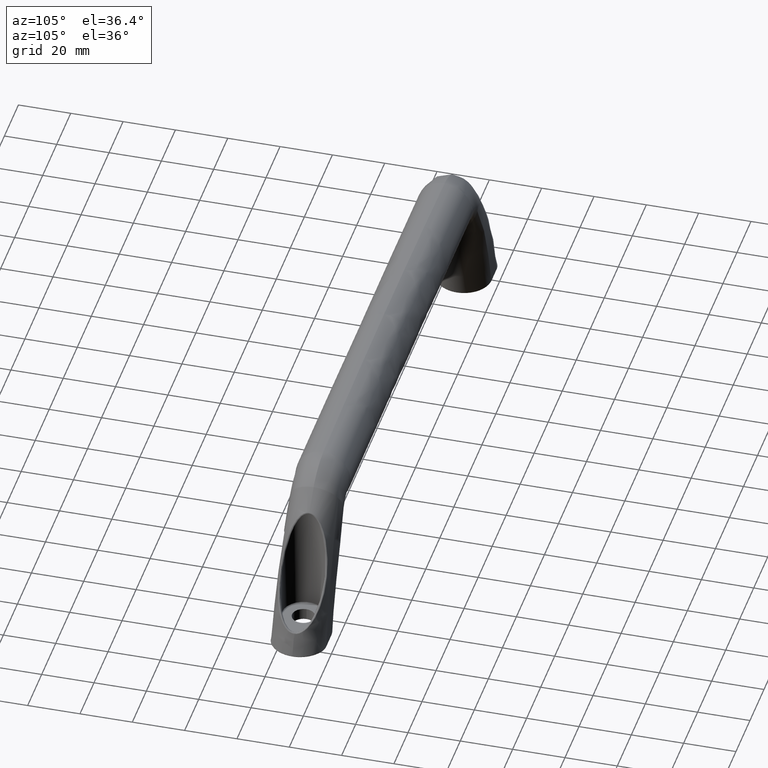
[diagram: clean part render]
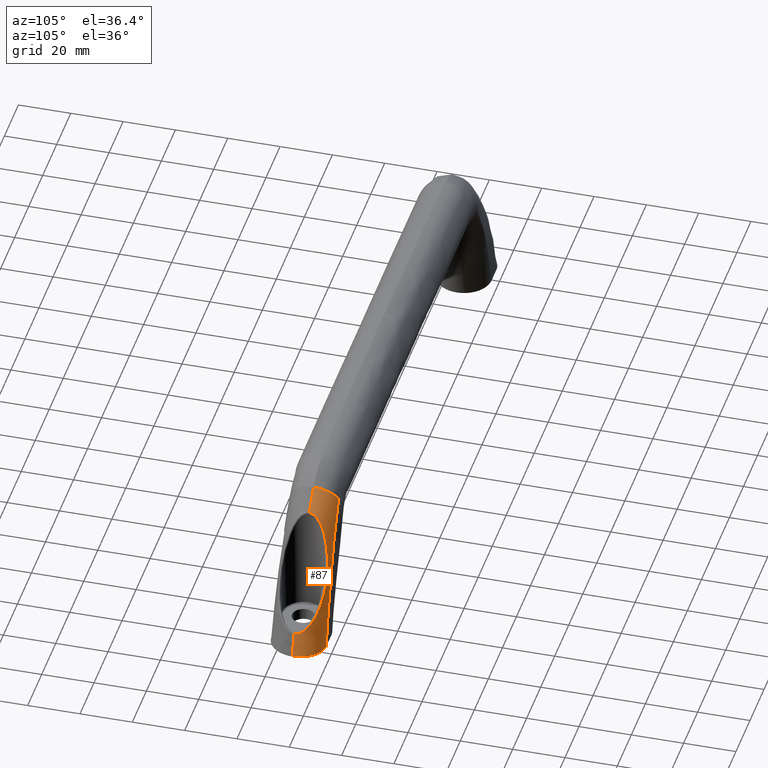
[diagram: same view with one face highlighted and labeled with its STEP entity id]
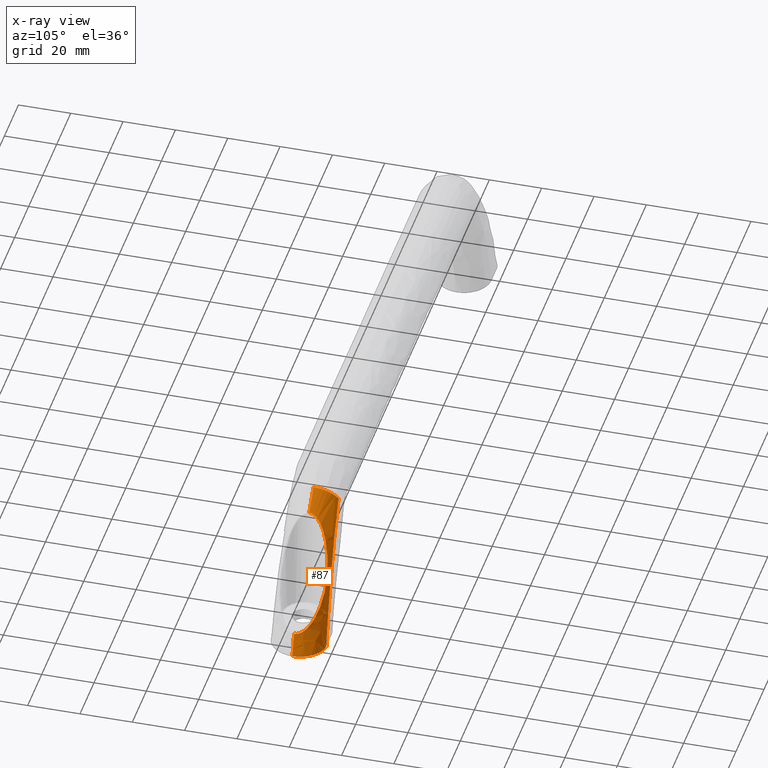
[diagram: x-ray of the same camera — body ghosted, the highlighted face saturated]
A machine part, auxiliary view. The second image highlights one B-rep face of the part: STEP entity #87.
The next image is the same camera in x-ray: the body ghosted, the highlighted face saturated — about 0% of this face is hidden behind the body in this view.
In plain terms, the highlighted face is a freeform B-spline surface patch.
Its self-contained STEP definition (entity closure, byte-faithful):
#87=ADVANCED_FACE('',(#578),#577,.T.);
#577=( BOUNDED_SURFACE() B_SPLINE_SURFACE( 2,3,((#6893,#6894,#6895,#6896,#6897,#6898,#6899,#6900,#6901,#6902),(#6903,#6904,#6905,#6906,#6907,#6908,#6909,#6910,#6911,#6912),(#6913,#6914,#6915,#6916,#6917,#6918,#6919,#6920,#6921,#6922),(#6923,#6924,#6925,#6926,#6927,#6928,#6929,#6930,#6931,#6932),(#6933,#6934,#6935,#6936,#6937,#6938,#6939,#6940,#6941,#6942)), .UNSPECIFIED.,.F.,.F.,.F.) B_SPLINE_SURFACE_WITH_KNOTS((3,2,3),(4,2,2,2,4),(6.31178376641E+01,6.66553613277E+01,7.83751814937E+01),(-6.51766255830E-04,1.29663250190E+01,2.59326500380E+01,3.88989750570E+01,5.18653000760E+01), .UNSPECIFIED. ) GEOMETRIC_REPRESENTATION_ITEM() RATIONAL_B_SPLINE_SURFACE(((1.00000000000E+00,1.00000000000E+00,1.00000000000E+00,1.00000000000E+00,1.00000000000E+00,1.00000000000E+00,1.00000000001E+00,1.00000000001E+00,1.00000000001E+00,1.00000000001E+00),(9.99940662781E-01,9.99940861940E-01,9.97959885512E-01,9.92016956218E-01,9.88055102930E-01,9.80131396352E-01,9.76169543063E-01,9.70226763129E-01,9.68245836485E-01,9.68245836485E-01),(1.00000000000E+00,1.00000000000E+00,1.00000000000E+00,1.00000000000E+00,1.00000000000E+00,1.00000000000E+00,1.00000000000E+00,1.00000000000E+00,1.00000000000E+00,1.00000000000E+00),(8.68727517691E-01,8.68727563546E-01,8.68271450497E-01,8.66903111347E-01,8.65990908174E-01,8.64166501827E-01,8.63254298653E-01,8.61885993893E-01,8.61429892306E-01,8.61429892306E-01),(1.00000000000E+00,1.00000000000E+00,1.00000000000E+00,1.00000000000E+00,1.00000000000E+00,1.00000000000E+00,1.00000000000E+00,1.00000000000E+00,1.00000000000E+00,1.00000000000E+00))) REPRESENTATION_ITEM('') SURFACE() );
#578=FACE_OUTER_BOUND('',#6943,.T.);
#6893=CARTESIAN_POINT('',(9.80559694235E+01,-3.10503641359E+00,1.90285147042E+01));
#6894=CARTESIAN_POINT('',(1.01014555475E+02,-2.94869303341E+00,1.53268301788E+01));
#6895=CARTESIAN_POINT('',(1.03742755159E+02,-2.74637645563E+00,1.13752376985E+01));
#6896=CARTESIAN_POINT('',(1.08639420570E+02,-2.37642283726E+00,3.16274884787E+00));
#6897=CARTESIAN_POINT('',(1.10809309940E+02,-2.20974791459E+00,-1.09499500813E+00));
#6898=CARTESIAN_POINT('',(1.14638590719E+02,-1.94658485326E+00,-9.75606512313E+00));
#6899=CARTESIAN_POINT('',(1.16301752385E+02,-1.84822801327E+00,-1.41570094171E+01));
#6900=CARTESIAN_POINT('',(1.19256572930E+02,-1.67736112958E+00,-2.30230608031E+01));
#6901=CARTESIAN_POINT('',(1.20552020323E+02,-1.60311970739E+00,-2.74879540720E+01));
#6902=CARTESIAN_POINT('',(1.21736335383E+02,-1.50000000399E+00,-3.19999999950E+01));
#6903=CARTESIAN_POINT('',(9.82483665062E+01,-3.36477175686E+00,1.94479401738E+01));
#6904=CARTESIAN_POINT('',(1.01265685876E+02,-3.21299398905E+00,1.57272090617E+01));
#6905=CARTESIAN_POINT('',(1.04085424266E+02,-3.00002258010E+00,1.17943503349E+01));
#6906=CARTESIAN_POINT('',(1.09242432325E+02,-2.58839116879E+00,3.64212509893E+00));
#6907=CARTESIAN_POINT('',(1.11587804849E+02,-2.38996085562E+00,-5.92424610072E-01));
#6908=CARTESIAN_POINT('',(1.15796954115E+02,-2.05825548572E+00,-9.27113972507E+00));
#6909=CARTESIAN_POINT('',(1.17659343621E+02,-1.92363359560E+00,-1.37152760281E+01));
#6910=CARTESIAN_POINT('',(1.20935196246E+02,-1.69658312489E+00,-2.27612192690E+01));
#6911=CARTESIAN_POINT('',(1.22342032205E+02,-1.60312006598E+00,-2.73459447900E+01));
#6912=CARTESIAN_POINT('',(1.23543727613E+02,-1.50000000388E+00,-3.19999999950E+01));
#6913=CARTESIAN_POINT('',(9.84383588809E+01,-3.63449853407E+00,1.98621225731E+01));
#6914=CARTESIAN_POINT('',(1.01511983918E+02,-3.48744789080E+00,1.61242532110E+01));
#6915=CARTESIAN_POINT('',(1.04401782985E+02,-3.30926003879E+00,1.22224740823E+01));
#6916=CARTESIAN_POINT('',(1.09784969190E+02,-3.00205890568E+00,4.10901873999E+00));
#6917=CARTESIAN_POINT('',(1.12277727827E+02,-2.87416413088E+00,-1.03170598012E-01));
#6918=CARTESIAN_POINT('',(1.16809149832E+02,-2.68862182782E+00,-8.80697738101E+00));
#6919=CARTESIAN_POINT('',(1.18846661523E+02,-2.62905485975E+00,-1.32988373750E+01));
#6920=CARTESIAN_POINT('',(1.22396618368E+02,-2.52042512888E+00,-2.25050620630E+01));
#6921=CARTESIAN_POINT('',(1.23908082313E+02,-2.46952971340E+00,-2.72191739400E+01));
#6922=CARTESIAN_POINT('',(1.25125195814E+02,-2.37500000570E+00,-3.19999999950E+01));
#6923=CARTESIAN_POINT('',(1.00426942322E+02,-6.45763878123E+00,2.41972331113E+01));
#6924=CARTESIAN_POINT('',(1.04112549504E+02,-6.36021712125E+00,2.02705544544E+01));
#6925=CARTESIAN_POINT('',(1.07545454707E+02,-6.23652541139E+00,1.61008333383E+01));
#6926=CARTESIAN_POINT('',(1.13839189529E+02,-6.01465119867E+00,7.36134411099E+00));
#6927=CARTESIAN_POINT('',(1.16702351849E+02,-5.91708937058E+00,2.78728848699E+00));
#6928=CARTESIAN_POINT('',(1.21815880369E+02,-5.76721340496E+00,-6.68578303901E+00));
#6929=CARTESIAN_POINT('',(1.24065375286E+02,-5.71375037425E+00,-1.15847668850E+01));
#6930=CARTESIAN_POINT('',(1.27922009310E+02,-5.61988910156E+00,-2.16308019100E+01));
#6931=CARTESIAN_POINT('',(1.29526735197E+02,-5.57838137007E+00,-2.67727867880E+01));
#6932=CARTESIAN_POINT('',(1.30799843709E+02,-5.51468812255E+00,-3.19999999950E+01));
#6933=CARTESIAN_POINT('',(1.00426942371E+02,-1.20000000040E+01,2.41972330772E+01));
#6934=CARTESIAN_POINT('',(1.04112225073E+02,-1.20000000040E+01,2.02707803799E+01));
#6935=CARTESIAN_POINT('',(1.07542810404E+02,-1.20000000040E+01,1.61043356485E+01));
#6936=CARTESIAN_POINT('',(1.13836523276E+02,-1.20000000040E+01,7.36494017399E+00));
#6937=CARTESIAN_POINT('',(1.16699420765E+02,-1.20000000040E+01,2.79237830199E+00));
#6938=CARTESIAN_POINT('',(1.21813034512E+02,-1.20000000040E+01,-6.68061166001E+00));
#6939=CARTESIAN_POINT('',(1.24063665794E+02,-1.20000000040E+01,-1.15805975250E+01));
#6940=CARTESIAN_POINT('',(1.27920462960E+02,-1.20000000040E+01,-2.16266457640E+01));
#6941=CARTESIAN_POINT('',(1.29526723441E+02,-1.20000000040E+01,-2.67723877050E+01));
#6942=CARTESIAN_POINT('',(1.30799843709E+02,-1.20000000040E+01,-3.19999999950E+01));
#6943=EDGE_LOOP('',(#7633,#7634,#7635,#7636,#7637,#7638,#7639));
#7633=ORIENTED_EDGE('',*,*,#7783,.F.);
#7634=ORIENTED_EDGE('',*,*,#7797,.F.);
#7635=ORIENTED_EDGE('',*,*,#7788,.F.);
#7636=ORIENTED_EDGE('',*,*,#7806,.F.);
#7637=ORIENTED_EDGE('',*,*,#7786,.F.);
#7638=ORIENTED_EDGE('',*,*,#7816,.F.);
#7639=ORIENTED_EDGE('',*,*,#7803,.F.);
#7783=EDGE_CURVE('',#8353,#8360,#8361,.T.);
#7786=EDGE_CURVE('',#8374,#8381,#8382,.T.);
#7788=EDGE_CURVE('',#8394,#8395,#8396,.T.);
#7797=EDGE_CURVE('',#8395,#8353,#8456,.T.);
#7803=EDGE_CURVE('',#8360,#8475,#8496,.T.);
#7806=EDGE_CURVE('',#8381,#8394,#8516,.T.);
#7816=EDGE_CURVE('',#8475,#8374,#8579,.T.);
#8353=VERTEX_POINT('',#9811);
#8360=VERTEX_POINT('',#9838);
#8361=CIRCLE('',#9842,1.26572720156E+02);
#8374=VERTEX_POINT('',#9874);
#8381=VERTEX_POINT('',#9905);
#8382=(BOUNDED_CURVE() B_SPLINE_CURVE(3,(#9906,#9907,#9908,#9909),.UNSPECIFIED.,.F.,.F.) B_SPLINE_CURVE_WITH_KNOTS((4,4),(0.00000000000E+00,9.63240868787E+00),.UNSPECIFIED.) CURVE() GEOMETRIC_REPRESENTATION_ITEM() RATIONAL_B_SPLINE_CURVE((1.00000000000E+00,1.00000000000E+00,1.00000000000E+00,1.00000000000E+00)) REPRESENTATION_ITEM('') );
#8394=VERTEX_POINT('',#9915);
#8395=VERTEX_POINT('',#9916);
#8396=(BOUNDED_CURVE() B_SPLINE_CURVE(3,(#9917,#9918,#9919,#9920,#9921,#9922,#9923,#9924,#9925,#9926,#9927,#9928,#9929),.UNSPECIFIED.,.F.,.F.) B_SPLINE_CURVE_WITH_KNOTS((4,3,3,3,4),(0.00000000000E+00,1.43312055371E+01,2.86338446105E+01,4.27498510051E+01,5.65273800341E+01),.UNSPECIFIED.) CURVE() GEOMETRIC_REPRESENTATION_ITEM() RATIONAL_B_SPLINE_CURVE((1.00000000000E+00,1.00000000000E+00,1.00000000000E+00,1.00000000000E+00,1.00000000000E+00,1.00000000000E+00,1.00000000000E+00,1.00000000000E+00,1.00000000000E+00,1.00000000000E+00,1.00000000000E+00,1.00000000000E+00,1.00000000000E+00)) REPRESENTATION_ITEM('') );
#8456=(BOUNDED_CURVE() B_SPLINE_CURVE(3,(#10070,#10071,#10072,#10073,#10074,#10075,#10076,#10077,#10078,#10079,#10080,#10081,#10082,#10083,#10084,#10085,#10086,#10087,#10088,#10089,#10090,#10091,#10092,#10093,#10094,#10095,#10096,#10097,#10098,#10099,#10100),.UNSPECIFIED.,.F.,.F.) B_SPLINE_CURVE_WITH_KNOTS((4,2,2,2,2,2,2,2,1,2,2,2,2,2,2,4),(0.00000000000E+00,4.76801400934E-01,9.53602801868E-01,1.90720560364E+00,2.86080840540E+00,3.81441120717E+00,5.72161681068E+00,6.67521961245E+00,7.62882241422E+00,8.58242521599E+00,9.53602801776E+00,1.14432336213E+01,1.23968364231E+01,1.33504392248E+01,1.43040420266E+01,1.52576448284E+01),.UNSPECIFIED.) CURVE() GEOMETRIC_REPRESENTATION_ITEM() RATIONAL_B_SPLINE_CURVE((1.00000000000E+00,1.00000000000E+00,1.00000000000E+00,1.00000000000E+00,1.00000000000E+00,1.00000000000E+00,1.00000000000E+00,1.00000000000E+00,1.00000000000E+00,1.00000000000E+00,1.00000000000E+00,1.00000000000E+00,1.00000000000E+00,1.00000000000E+00,1.00000000000E+00,1.00000000000E+00,1.00000000000E+00,1.00000000000E+00,1.00000000000E+00,1.00000000000E+00,1.00000000000E+00,1.00000000000E+00,1.00000000000E+00,1.00000000000E+00,1.00000000000E+00,1.00000000000E+00,1.00000000000E+00,1.00000000000E+00,1.00000000000E+00,1.00000000000E+00,1.00000000000E+00)) REPRESENTATION_ITEM('') );
#8475=VERTEX_POINT('',#10131);
#8496=(BOUNDED_CURVE() B_SPLINE_CURVE(3,(#10170,#10171,#10172,#10173,#10174,#10175,#10176,#10177,#10178,#10179,#10180,#10181,#10182,#10183,#10184,#10185,#10186,#10187,#10188,#10189,#10190,#10191,#10192,#10193,#10194,#10195,#10196,#10197,#10198,#10199,#10200,#10201),.UNSPECIFIED.,.F.,.F.) B_SPLINE_CURVE_WITH_KNOTS((4,2,2,2,2,2,2,2,2,2,2,2,2,2,2,4),(0.00000000000E+00,2.02366291415E-01,4.04732582731E-01,8.09465165462E-01,1.61893033082E+00,2.42839549619E+00,3.23786066165E+00,4.85679099247E+00,6.47572132320E+00,9.71358198485E+00,1.13325123157E+01,1.29514426465E+01,1.61893033081E+01,1.94271639697E+01,2.26650246313E+01,2.59028852929E+01),.UNSPECIFIED.) CURVE() GEOMETRIC_REPRESENTATION_ITEM() RATIONAL_B_SPLINE_CURVE((1.00000000000E+00,1.00000000000E+00,1.00000000000E+00,1.00000000000E+00,1.00000000000E+00,1.00000000000E+00,1.00000000000E+00,1.00000000000E+00,1.00000000000E+00,1.00000000000E+00,1.00000000000E+00,1.00000000000E+00,1.00000000000E+00,1.00000000000E+00,1.00000000000E+00,1.00000000000E+00,1.00000000000E+00,1.00000000000E+00,1.00000000000E+00,1.00000000000E+00,1.00000000000E+00,1.00000000000E+00,1.00000000000E+00,1.00000000000E+00,1.00000000000E+00,1.00000000000E+00,1.00000000000E+00,1.00000000000E+00,1.00000000000E+00,1.00000000000E+00,1.00000000000E+00,1.00000000000E+00)) REPRESENTATION_ITEM('') );
#8516=(BOUNDED_CURVE() B_SPLINE_CURVE(3,(#10239,#10240,#10241,#10242,#10243,#10244),.UNSPECIFIED.,.F.,.F.) B_SPLINE_CURVE_WITH_KNOTS((4,1,1,4),(0.00000000000E+00,5.66192757385E+00,8.51751825663E+00,1.13054924920E+01),.UNSPECIFIED.) CURVE() GEOMETRIC_REPRESENTATION_ITEM() RATIONAL_B_SPLINE_CURVE((1.00000000000E+00,1.00000000000E+00,1.00000000000E+00,1.00000000000E+00,1.00000000000E+00,1.00000000000E+00)) REPRESENTATION_ITEM('') );
#8579=(BOUNDED_CURVE() B_SPLINE_CURVE(3,(#10342,#10343,#10344,#10345,#10346,#10347,#10348,#10349,#10350,#10351,#10352,#10353,#10354,#10355,#10356,#10357,#10358,#10359,#10360,#10361,#10362,#10363,#10364,#10365,#10366,#10367,#10368,#10369),.UNSPECIFIED.,.F.,.F.) B_SPLINE_CURVE_WITH_KNOTS((4,2,2,2,2,2,2,2,2,2,2,2,2,4),(0.00000000000E+00,3.37327195742E+00,6.74654391474E+00,1.01198158722E+01,1.34930878296E+01,1.68663597870E+01,2.02396317444E+01,2.19262677231E+01,2.36129037018E+01,2.52995396805E+01,2.61428576698E+01,2.65645166645E+01,2.67753461618E+01,2.69861756592E+01),.UNSPECIFIED.) CURVE() GEOMETRIC_REPRESENTATION_ITEM() RATIONAL_B_SPLINE_CURVE((1.00000000000E+00,1.00000000000E+00,1.00000000000E+00,1.00000000000E+00,1.00000000000E+00,1.00000000000E+00,1.00000000000E+00,1.00000000000E+00,1.00000000000E+00,1.00000000000E+00,1.00000000000E+00,1.00000000000E+00,1.00000000000E+00,1.00000000000E+00,1.00000000000E+00,1.00000000000E+00,1.00000000000E+00,1.00000000000E+00,1.00000000000E+00,1.00000000000E+00,1.00000000000E+00,1.00000000000E+00,1.00000000000E+00,1.00000000000E+00,1.00000000000E+00,1.00000000000E+00,1.00000000000E+00,1.00000000000E+00)) REPRESENTATION_ITEM('') );
#9811=CARTESIAN_POINT('',(1.30739251213E+02,-1.20000000040E+01,-3.17522842780E+01));
#9838=CARTESIAN_POINT('',(1.28326027955E+02,-1.20000000040E+01,-2.32286379370E+01));
#9839=CARTESIAN_POINT('',(7.82145555472E+00,-1.20000000040E+01,-6.19494529882E+01));
#9840=DIRECTION('',(-6.92504089411E-15,-1.00000000000E+00,6.76601909402E-14));
#9841=DIRECTION('',(-9.71123916015E-01,-9.41700105498E-15,-2.38575647841E-01));
#9842=AXIS2_PLACEMENT_3D('',#9839,#9840,#9841);
#9874=CARTESIAN_POINT('',(1.06739905158E+02,-1.20000000040E+01,1.69272179952E+01));
#9905=CARTESIAN_POINT('',(1.00427498075E+02,-1.20000000040E+01,2.41966410031E+01));
#9906=CARTESIAN_POINT('',(1.06739905158E+02,-1.20000000040E+01,1.69272179952E+01));
#9907=CARTESIAN_POINT('',(1.04730351840E+02,-1.20000000040E+01,1.94304559535E+01));
#9908=CARTESIAN_POINT('',(1.02624172256E+02,-1.20000000040E+01,2.18561827852E+01));
#9909=CARTESIAN_POINT('',(1.00427498075E+02,-1.20000000040E+01,2.41966410031E+01));
#9915=CARTESIAN_POINT('',(9.80564155489E+01,-3.10501283819E+00,1.90279565230E+01));
#9916=CARTESIAN_POINT('',(1.21682567280E+02,-1.50465548028E+00,-3.17954702417E+01));
#9917=CARTESIAN_POINT('',(9.80564155489E+01,-3.10501283819E+00,1.90279565230E+01));
#9918=CARTESIAN_POINT('',(1.01014829848E+02,-2.94867269525E+00,1.53264329382E+01));
#9919=CARTESIAN_POINT('',(1.03742878458E+02,-2.74636715793E+00,1.13750313027E+01));
#9920=CARTESIAN_POINT('',(1.06191149751E+02,-2.56139499769E+00,7.26889007960E+00));
#9921=CARTESIAN_POINT('',(1.08639421043E+02,-2.37642283744E+00,3.16274885549E+00));
#9922=CARTESIAN_POINT('',(1.10809310533E+02,-2.20974791479E+00,-1.09499499860E+00));
#9923=CARTESIAN_POINT('',(1.12723951042E+02,-2.07816638418E+00,-5.42553005472E+00));
#9924=CARTESIAN_POINT('',(1.14638591550E+02,-1.94658485352E+00,-9.75606510984E+00));
#9925=CARTESIAN_POINT('',(1.16301753334E+02,-1.84822801355E+00,-1.41570094020E+01));
#9926=CARTESIAN_POINT('',(1.17779163722E+02,-1.76279457179E+00,-1.85900350931E+01));
#9927=CARTESIAN_POINT('',(1.19234247063E+02,-1.67865222452E+00,-2.29560676323E+01));
#9928=CARTESIAN_POINT('',(1.20512825717E+02,-1.60536617895E+00,-2.73530118415E+01));
#9929=CARTESIAN_POINT('',(1.21682567280E+02,-1.50465548028E+00,-3.17954702417E+01));
#10070=CARTESIAN_POINT('',(1.21682567280E+02,-1.50465548028E+00,-3.17954702417E+01));
#10071=CARTESIAN_POINT('',(1.21841424032E+02,-1.50467075652E+00,-3.17942857451E+01));
#10072=CARTESIAN_POINT('',(1.22002853620E+02,-1.51021647140E+00,-3.17930937811E+01));
#10073=CARTESIAN_POINT('',(1.22320716102E+02,-1.53211052064E+00,-3.17907702175E+01));
#10074=CARTESIAN_POINT('',(1.22478845510E+02,-1.54845942398E+00,-3.17896259819E+01));
#10075=CARTESIAN_POINT('',(1.22950850543E+02,-1.61356148843E+00,-3.17862452767E+01));
#10076=CARTESIAN_POINT('',(1.23262354317E+02,-1.67829361286E+00,-3.17840607596E+01));
#10077=CARTESIAN_POINT('',(1.23878879073E+02,-1.85143160510E+00,-3.17798279861E+01));
#10078=CARTESIAN_POINT('',(1.24182590071E+02,-1.95974349142E+00,-3.17777892226E+01));
#10079=CARTESIAN_POINT('',(1.24770039596E+02,-2.21608053361E+00,-3.17739288415E+01));
#10080=CARTESIAN_POINT('',(1.25050240735E+02,-2.36506560123E+00,-3.17720941238E+01));
#10081=CARTESIAN_POINT('',(1.25868274259E+02,-2.84677698687E+00,-3.17689367145E+01));
#10082=CARTESIAN_POINT('',(1.26384059896E+02,-3.21343410444E+00,-3.17670152305E+01));
#10083=CARTESIAN_POINT('',(1.27112393189E+02,-3.83321782358E+00,-3.17643752936E+01));
#10084=CARTESIAN_POINT('',(1.27346553681E+02,-4.05079857885E+00,-3.17635396822E+01));
#10085=CARTESIAN_POINT('',(1.27792064557E+02,-4.50215550523E+00,-3.17619703591E+01));
#10086=CARTESIAN_POINT('',(1.28216578103E+02,-4.97121544956E+00,-3.17604963601E+01));
#10087=CARTESIAN_POINT('',(1.28599477732E+02,-5.47536039121E+00,-3.17591993860E+01));
#10088=CARTESIAN_POINT('',(1.28961292054E+02,-5.99728249233E+00,-3.17579865329E+01));
#10089=CARTESIAN_POINT('',(1.29132320666E+02,-6.26840831088E+00,-3.17574200094E+01));
#10090=CARTESIAN_POINT('',(1.29605617050E+02,-7.09647346471E+00,-3.17558662631E+01));
#10091=CARTESIAN_POINT('',(1.29869939835E+02,-7.66924334752E+00,-3.17550179966E+01));
#10092=CARTESIAN_POINT('',(1.30191512849E+02,-8.55871836581E+00,-3.17539962234E+01));
#10093=CARTESIAN_POINT('',(1.30286148563E+02,-8.86029177612E+00,-3.17536977524E+01));
#10094=CARTESIAN_POINT('',(1.30449776083E+02,-9.47381793094E+00,-3.17531839049E+01));
#10095=CARTESIAN_POINT('',(1.30518871127E+02,-9.78680542264E+00,-3.17529682125E+01));
#10096=CARTESIAN_POINT('',(1.30628908604E+02,-1.04140441595E+01,-3.17526256467E+01));
#10097=CARTESIAN_POINT('',(1.30670170982E+02,-1.07291547456E+01,-3.17524977654E+01));
#10098=CARTESIAN_POINT('',(1.30725341911E+02,-1.13623411285E+01,-3.17523270138E+01));
#10099=CARTESIAN_POINT('',(1.30739250975E+02,-1.16822777964E+01,-3.17522839447E+01));
#10100=CARTESIAN_POINT('',(1.30739251213E+02,-1.20000000040E+01,-3.17522842780E+01));
#10131=CARTESIAN_POINT('',(1.15228847484E+02,-2.92361349037E+00,-5.19344891701E+00));
#10170=CARTESIAN_POINT('',(1.28326027955E+02,-1.20000000040E+01,-2.32286379370E+01));
#10171=CARTESIAN_POINT('',(1.28326027796E+02,-1.19325465278E+01,-2.32286363580E+01));
#10172=CARTESIAN_POINT('',(1.28324898136E+02,-1.18627927960E+01,-2.32272199940E+01));
#10173=CARTESIAN_POINT('',(1.28320442942E+02,-1.17265912279E+01,-2.32216357330E+01));
#10174=CARTESIAN_POINT('',(1.28317117546E+02,-1.16588228096E+01,-2.32174682650E+01));
#10175=CARTESIAN_POINT('',(1.28303934654E+02,-1.14564881035E+01,-2.32009505050E+01));
#10176=CARTESIAN_POINT('',(1.28290872987E+02,-1.13228916501E+01,-2.31845876750E+01));
#10177=CARTESIAN_POINT('',(1.28239462631E+02,-1.09257980571E+01,-2.31202206410E+01));
#10178=CARTESIAN_POINT('',(1.28188458791E+02,-1.06642835467E+01,-2.30563976350E+01));
#10179=CARTESIAN_POINT('',(1.28058320599E+02,-1.01582161619E+01,-2.28938713960E+01));
#10180=CARTESIAN_POINT('',(1.27980266793E+02,-9.91665929360E+00,-2.27965217720E+01));
#10181=CARTESIAN_POINT('',(1.27802910327E+02,-9.45218571429E+00,-2.25758237490E+01));
#10182=CARTESIAN_POINT('',(1.27702906151E+02,-9.22807702913E+00,-2.24516081750E+01));
#10183=CARTESIAN_POINT('',(1.27381749704E+02,-8.59103979492E+00,-2.20536372300E+01));
#10184=CARTESIAN_POINT('',(1.27139994895E+02,-8.21089862964E+00,-2.17552594310E+01));
#10185=CARTESIAN_POINT('',(1.26619144092E+02,-7.50984825478E+00,-2.11150131410E+01));
#10186=CARTESIAN_POINT('',(1.26338417695E+02,-7.18847010640E+00,-2.07711464890E+01));
#10187=CARTESIAN_POINT('',(1.25474023315E+02,-6.31232752579E+00,-1.97142611690E+01));
#10188=CARTESIAN_POINT('',(1.24862537334E+02,-5.83407676432E+00,-1.89693626710E+01));
#10189=CARTESIAN_POINT('',(1.23918593008E+02,-5.21595956443E+00,-1.78090638730E+01));
#10190=CARTESIAN_POINT('',(1.23598438990E+02,-5.02672105423E+00,-1.74137263650E+01));
#10191=CARTESIAN_POINT('',(1.22956354782E+02,-4.68038439188E+00,-1.66140170540E+01));
#10192=CARTESIAN_POINT('',(1.22635187001E+02,-4.52359284127E+00,-1.62106103110E+01));
#10193=CARTESIAN_POINT('',(1.21674702662E+02,-4.09500877758E+00,-1.49889140410E+01));
#10194=CARTESIAN_POINT('',(1.21038541535E+02,-3.86473240907E+00,-1.41591109940E+01));
#10195=CARTESIAN_POINT('',(1.19790075252E+02,-3.48953978685E+00,-1.24632899210E+01));
#10196=CARTESIAN_POINT('',(1.19177877452E+02,-3.34484924018E+00,-1.15971441610E+01));
#10197=CARTESIAN_POINT('',(1.17987153218E+02,-3.12327035113E+00,-9.82545507701E+00));
#10198=CARTESIAN_POINT('',(1.17407674837E+02,-3.04633082265E+00,-8.91828041901E+00));
#10199=CARTESIAN_POINT('',(1.16288789519E+02,-2.94692668931E+00,-7.07427583801E+00));
#10200=CARTESIAN_POINT('',(1.15750170931E+02,-2.92438457451E+00,-6.13925575701E+00));
#10201=CARTESIAN_POINT('',(1.15228847484E+02,-2.92361349037E+00,-5.19344891701E+00));
#10239=CARTESIAN_POINT('',(1.00427498075E+02,-1.20000000040E+01,2.41966410031E+01));
#10240=CARTESIAN_POINT('',(1.00432095229E+02,-1.01347780468E+01,2.42043888906E+01));
#10241=CARTESIAN_POINT('',(1.00081147975E+02,-7.35800232907E+00,2.34396340906E+01));
#10242=CARTESIAN_POINT('',(9.90540764050E+01,-4.51176457562E+00,2.12021819513E+01));
#10243=CARTESIAN_POINT('',(9.83880982788E+01,-3.54844465978E+00,1.97508945054E+01));
#10244=CARTESIAN_POINT('',(9.80564155489E+01,-3.10501283819E+00,1.90279565230E+01));
#10342=CARTESIAN_POINT('',(1.15228847484E+02,-2.92361349037E+00,-5.19344891701E+00));
#10343=CARTESIAN_POINT('',(1.14680946142E+02,-2.92280309513E+00,-4.19942334601E+00));
#10344=CARTESIAN_POINT('',(1.14199997600E+02,-2.97327539378E+00,-3.18653799601E+00));
#10345=CARTESIAN_POINT('',(1.13299671822E+02,-3.13662083176E+00,-1.14581902901E+00));
#10346=CARTESIAN_POINT('',(1.12881712381E+02,-3.25075905257E+00,-1.17614194012E-01));
#10347=CARTESIAN_POINT('',(1.12078609192E+02,-3.53732027972E+00,1.94282844299E+00));
#10348=CARTESIAN_POINT('',(1.11693900808E+02,-3.70996690186E+00,2.97520614899E+00));
#10349=CARTESIAN_POINT('',(1.10942358038E+02,-4.12139999324E+00,5.03675189199E+00));
#10350=CARTESIAN_POINT('',(1.10575682160E+02,-4.36003819840E+00,6.06600696899E+00));
#10351=CARTESIAN_POINT('',(1.09852115591E+02,-4.92371914596E+00,8.11486960499E+00));
#10352=CARTESIAN_POINT('',(1.09493909461E+02,-5.24998430989E+00,9.13846190599E+00));
#10353=CARTESIAN_POINT('',(1.08796704480E+02,-6.01702432576E+00,1.11299994060E+01));
#10354=CARTESIAN_POINT('',(1.08456364331E+02,-6.45637547390E+00,1.21018804265E+01));
#10355=CARTESIAN_POINT('',(1.07965108408E+02,-7.26202835881E+00,1.34961081748E+01));
#10356=CARTESIAN_POINT('',(1.07804312119E+02,-7.55600913849E+00,1.39510182012E+01));
#10357=CARTESIAN_POINT('',(1.07494400110E+02,-8.21707040201E+00,1.48243380077E+01));
#10358=CARTESIAN_POINT('',(1.07348079682E+02,-8.57747122912E+00,1.52348468154E+01));
#10359=CARTESIAN_POINT('',(1.07083454439E+02,-9.39180175375E+00,1.59743289916E+01));
#10360=CARTESIAN_POINT('',(1.06964240965E+02,-9.85080558855E+00,1.63057693201E+01));
#10361=CARTESIAN_POINT('',(1.06834721255E+02,-1.06143166514E+01,1.66649353228E+01));
#10362=CARTESIAN_POINT('',(1.06799594823E+02,-1.08843532101E+01,1.67621552584E+01));
#10363=CARTESIAN_POINT('',(1.06764260429E+02,-1.12950886136E+01,1.68598946811E+01));
#10364=CARTESIAN_POINT('',(1.06755237069E+02,-1.14336258415E+01,1.68848406982E+01));
#10365=CARTESIAN_POINT('',(1.06746104076E+02,-1.16440243081E+01,1.69100864203E+01));
#10366=CARTESIAN_POINT('',(1.06743793965E+02,-1.17145895798E+01,1.69164711408E+01));
#10367=CARTESIAN_POINT('',(1.06740694506E+02,-1.18566154233E+01,1.69250370507E+01));
#10368=CARTESIAN_POINT('',(1.06739905143E+02,-1.19294754341E+01,1.69272176897E+01));
#10369=CARTESIAN_POINT('',(1.06739905158E+02,-1.20000000040E+01,1.69272179952E+01));